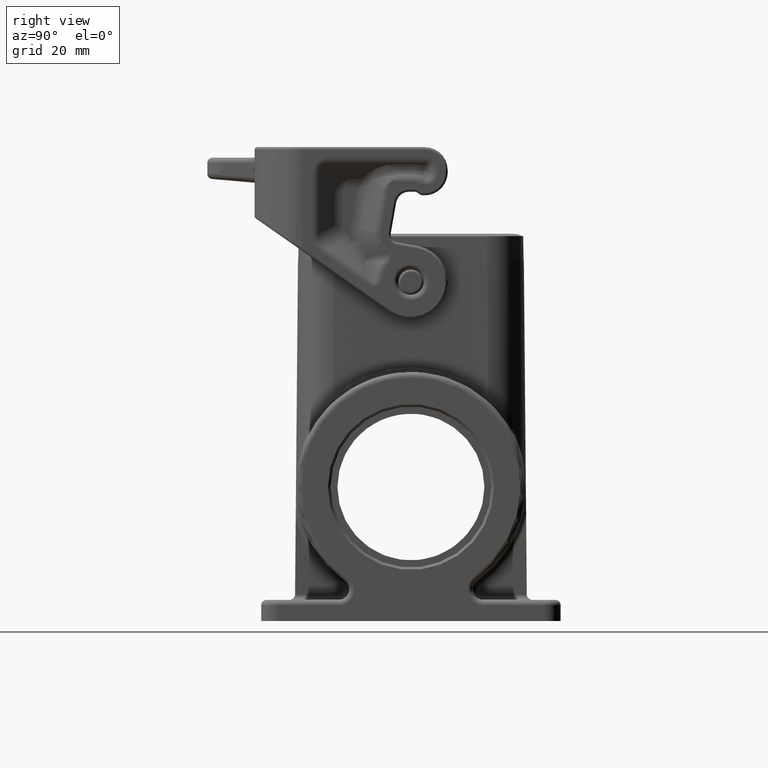
[diagram: clean part render]
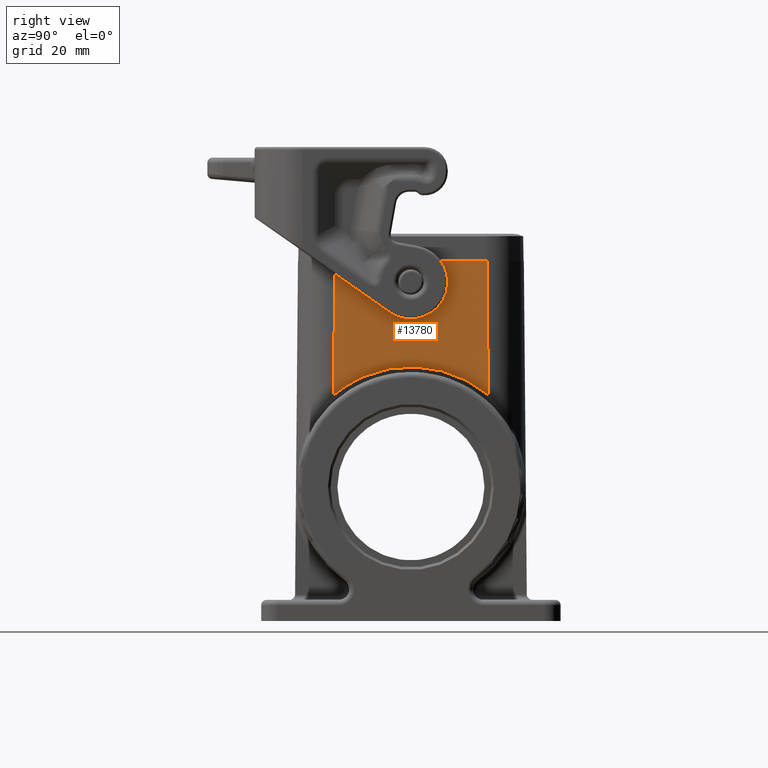
[diagram: same view with one face highlighted and labeled with its STEP entity id]
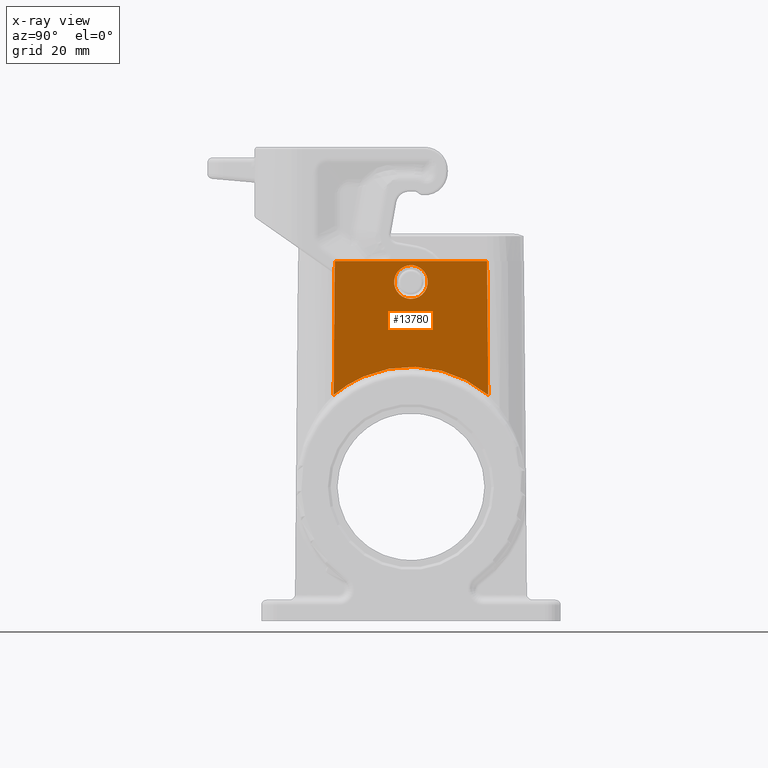
[diagram: x-ray of the same camera — body ghosted, the highlighted face saturated]
A machine part, right view. The second image highlights one B-rep face of the part: STEP entity #13780.
The next image is the same camera in x-ray: the body ghosted, the highlighted face saturated — about 0% of this face is hidden behind the body in this view.
In plain terms, the highlighted planar face has unit normal (1, 0, 0.0087).
Its self-contained STEP definition (entity closure, byte-faithful):
#4660=CARTESIAN_POINT('',(4.71320625672786,47.7285692818229,
-0.0610857484886175));
#4670=DIRECTION('',(-0.00872620324394422,0.00872620324394422,
0.99992385047757));
#4680=VECTOR('',#4670,1.);
#4690=LINE('',#4660,#4680);
#4700=CARTESIAN_POINT('',(4.690856,47.7509195385508,2.5));
#4710=VERTEX_POINT('',#4700);
#4720=CARTESIAN_POINT('',(4.46830148985381,47.973474048697,
28.0022208978418));
#4730=VERTEX_POINT('',#4720);
#4740=EDGE_CURVE('',#4710,#4730,#4690,.T.);
#13180=CARTESIAN_POINT('',(4.71267233874593,11.750653,
9.51923395718923E-5));
#13190=DIRECTION('',(-0.999961923064171,0.,-0.00872653549837393));
#13200=DIRECTION('',(0.,1.,0.));
#13210=AXIS2_PLACEMENT_3D('',#13180,#13190,#13200);
#13220=PLANE('',#13210);
#13230=CARTESIAN_POINT('',(4.71320625672786,18.7727367181771,
-0.0610857484886175));
#13240=DIRECTION('',(-0.00872620324394422,-0.00872620324394422,
0.99992385047757));
#13250=VECTOR('',#13240,1.);
#13260=LINE('',#13230,#13250);
#13270=CARTESIAN_POINT('',(4.690856,18.7503864614492,2.5));
#13280=VERTEX_POINT('',#13270);
#13290=CARTESIAN_POINT('',(4.46830148985369,18.5278319513029,
28.0022208978549));
#13300=VERTEX_POINT('',#13290);
#13310=EDGE_CURVE('',#13280,#13300,#13260,.T.);
#13320=ORIENTED_EDGE('',*,*,#13310,.T.);
#13330=CARTESIAN_POINT('',(4.690856,0.,2.5));
#13340=DIRECTION('',(0.,1.,0.));
#13350=VECTOR('',#13340,1.);
#13360=LINE('',#13330,#13350);
#13370=EDGE_CURVE('',#13280,#4710,#13360,.T.);
#13380=ORIENTED_EDGE('',*,*,#13370,.F.);
#13390=ORIENTED_EDGE('',*,*,#4740,.F.);
#13400=CARTESIAN_POINT('',(4.46830148985381,47.973474048697,
28.0022208978418));
#13410=CARTESIAN_POINT('',(4.46857126551688,47.9367159694857,
27.9713076687728));
#13420=CARTESIAN_POINT('',(4.46884003036673,47.8998606756766,
27.9405102674264));
#13430=CARTESIAN_POINT('',(4.47752565697914,46.7011593420287,
26.9452360383824));
#13440=CARTESIAN_POINT('',(4.48492422226557,45.4460233540073,
26.0974444293168));
#13450=CARTESIAN_POINT('',(4.499022501335,42.4529930535423,
24.4819416616054));
#13460=CARTESIAN_POINT('',(4.50502624397736,40.6856118738324,
23.7939808964933));
#13470=CARTESIAN_POINT('',(4.51310384133648,37.0220577851513,
22.8683799188231));
#13480=CARTESIAN_POINT('',(4.51514658950893,35.1399934007769,
22.6343041631886));
#13490=CARTESIAN_POINT('',(4.51514658950893,31.361312599333,
22.6343041631886));
#13500=CARTESIAN_POINT('',(4.51310384133672,29.4792482150672,
22.8683799187959));
#13510=CARTESIAN_POINT('',(4.50502624397853,25.8156941265858,
23.7939808963597));
#13520=CARTESIAN_POINT('',(4.49902250133685,24.0483129469646,
24.4819416613934));
#13530=CARTESIAN_POINT('',(4.48492422226772,21.0552826463569,
26.0974444290709));
#13540=CARTESIAN_POINT('',(4.47752565698037,19.8001466581399,
26.9452360382424));
#13550=CARTESIAN_POINT('',(4.46884003036671,18.6014453243207,
27.9405102674287));
#13560=CARTESIAN_POINT('',(4.46857126551678,18.5645900305161,
27.9713076687842));
#13570=CARTESIAN_POINT('',(4.46830148985369,18.5278319513029,
28.0022208978549));
#13580=B_SPLINE_CURVE_WITH_KNOTS('',3,(#13400,#13410,#13420,#13430,
#13440,#13450,#13460,#13470,#13480,#13490,#13500,#13510,#13520,#13530,
#13540,#13550,#13560,#13570),.UNSPECIFIED.,.F.,.F.,(4,2,2,2,2,2,2,2,4),(
0.,0.140932720343958,4.5717616654923,10.1088159961135,15.6458682748362,
21.1829205532369,26.7199748835364,31.1508038293284,31.2917365496806),
.UNSPECIFIED.);
#13590=EDGE_CURVE('',#4730,#13300,#13580,.T.);
#13600=ORIENTED_EDGE('',*,*,#13590,.F.);
#13610=EDGE_LOOP('',(#13600,#13390,#13380,#13320));
#13620=FACE_OUTER_BOUND('',#13610,.T.);
#13630=CARTESIAN_POINT('',(4.65594852883696,33.250653,6.5));
#13640=DIRECTION('',(-0.999961923064171,0.,-0.00872653549837393));
#13650=DIRECTION('',(0.00872653549837394,0.,-0.999961923064171));
#13660=AXIS2_PLACEMENT_3D('',#13630,#13640,#13650);
#13670=ELLIPSE('',#13660,3.20012185083436,3.2);
#13680=CARTESIAN_POINT('',(4.68387450576739,33.250653,3.3));
#13690=VERTEX_POINT('',#13680);
#13700=CARTESIAN_POINT('',(4.62802255190654,33.250653,9.7));
#13710=VERTEX_POINT('',#13700);
#13720=EDGE_CURVE('',#13690,#13710,#13670,.T.);
#13730=ORIENTED_EDGE('',*,*,#13720,.F.);
#13740=EDGE_CURVE('',#13710,#13690,#13670,.T.);
#13750=ORIENTED_EDGE('',*,*,#13740,.F.);
#13760=EDGE_LOOP('',(#13750,#13730));
#13770=FACE_BOUND('',#13760,.T.);
#13780=ADVANCED_FACE('',(#13620,#13770),#13220,.T.);